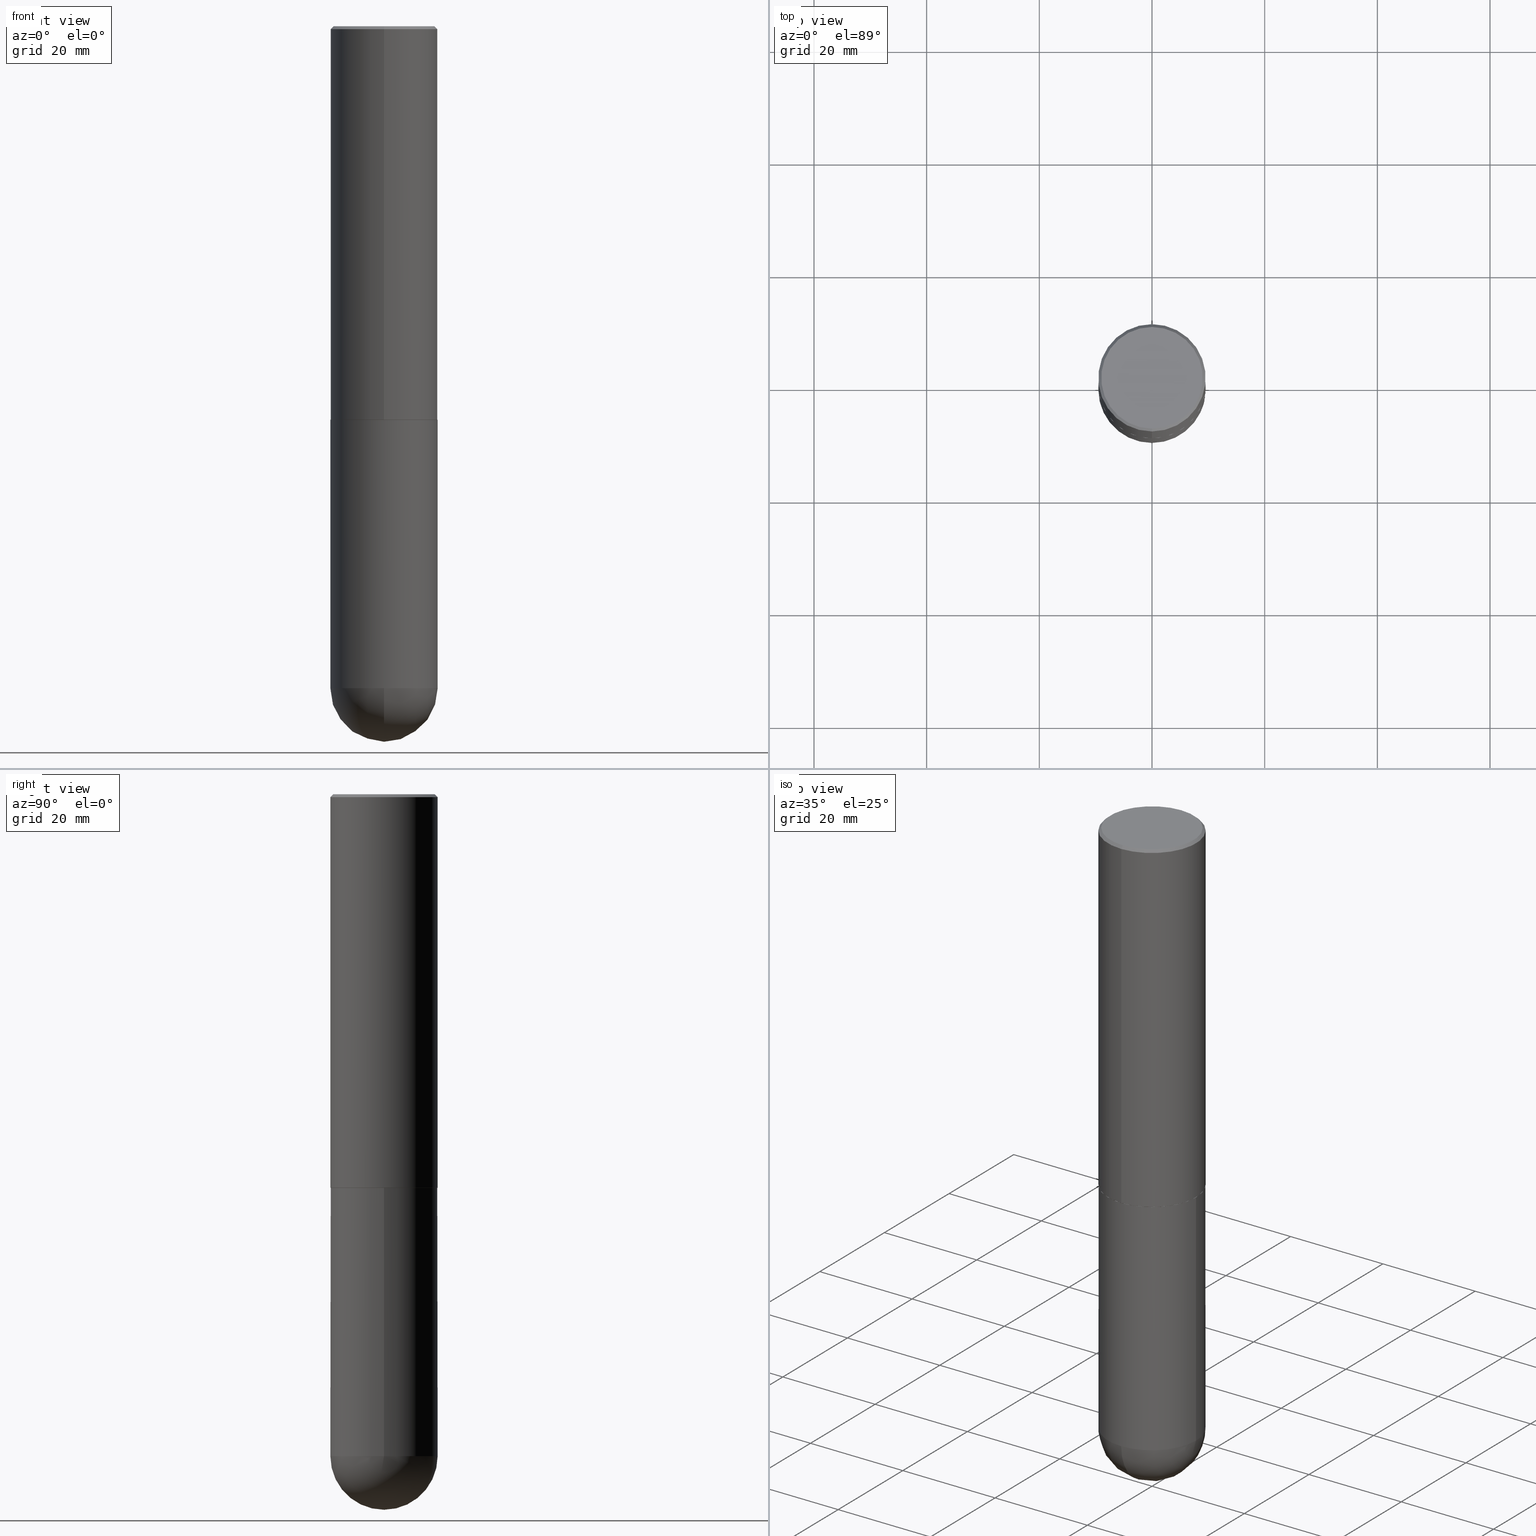
[diagram: canonical four-view strip — front | top / right | iso, engineering-drawing reading convention]
A machine part, canonical four-view strip (front | top / right | iso — engineering-drawing reading convention). The complete STEP part file that produces these views, byte-faithful:
ISO-10303-21;
HEADER;
FILE_DESCRIPTION (( 'STEP AP203' ),
    '1' );
FILE_NAME ('70465.STEP',
    '2024-04-10T12:33:47',
    ( '' ),
    ( '' ),
    'SwSTEP 2.0',
    'SolidWorks 2023',
    '' );
FILE_SCHEMA (( 'CONFIG_CONTROL_DESIGN' ));
ENDSEC;

DATA;
#1 = DIRECTION ( 'NONE',  ( -2.445545483075457236E-29, 3.491371533172028921E-15, 1.000000000000000000 ) ) ;
#2 = EDGE_CURVE ( 'NONE', #12, #28, #357, .T. ) ;
#3 = FACE_OUTER_BOUND ( 'NONE', #324, .T. ) ;
#4 = VECTOR ( 'NONE', #173, 39.37007874015748143 ) ;
#5 = APPLICATION_CONTEXT ( 'configuration controlled 3d designs of mechanical parts and assemblies' ) ;
#6 = CIRCLE ( 'NONE', #128, 0.3750000000000001110 ) ;
#7 = CARTESIAN_POINT ( 'NONE',  ( 3.132605730293573520E-45, -4.472249871077574679E-31, -1.280943557162587146E-16 ) ) ;
#8 = PERSON_AND_ORGANIZATION ( #91, #46 ) ;
#9 = DIRECTION ( 'NONE',  ( -2.445545483075457236E-29, 3.491371533172028921E-15, 1.000000000000000000 ) ) ;
#10 = SECURITY_CLASSIFICATION_LEVEL ( 'unclassified' ) ;
#11 = APPROVAL ( #327, 'UNSPECIFIED' ) ;
#12 = VERTEX_POINT ( 'NONE', #200 ) ;
#13 = PERSON_AND_ORGANIZATION_ROLE ( 'design_supplier' ) ;
#14 = CARTESIAN_POINT ( 'NONE',  ( 1.191225862093391378E-28, -1.790862693487176734E-14, -5.000000000000000000 ) ) ;
#15 = CIRCLE ( 'NONE', #21, 0.3550000000000001488 ) ;
#16 = LOCAL_TIME ( 8, 33, 47.00000000000000000, #391 ) ;
#17 = PERSON_AND_ORGANIZATION ( #91, #46 ) ;
#18 = LINE ( 'NONE', #393, #365 ) ;
#19 = EDGE_CURVE ( 'NONE', #96, #170, #15, .T. ) ;
#20 = COORDINATED_UNIVERSAL_TIME_OFFSET ( 5, 0, .BEHIND. ) ;
#21 = AXIS2_PLACEMENT_3D ( 'NONE', #7, #1, #165 ) ;
#22 = LOCAL_TIME ( 8, 33, 47.00000000000000000, #140 ) ;
#23 = CARTESIAN_POINT ( 'NONE',  ( 0.000000000000000000, 0.000000000000000000, 0.000000000000000000 ) ) ;
#24 = CARTESIAN_POINT ( 'NONE',  ( -0.3750000000000000555, -1.021030217788372352E-14, -2.750000000000000000 ) ) ;
#25 = ORIENTED_EDGE ( 'NONE', *, *, #179, .T. ) ;
#26 = CIRCLE ( 'NONE', #136, 0.3750000000000001110 ) ;
#27 = FACE_OUTER_BOUND ( 'NONE', #112, .T. ) ;
#28 = VERTEX_POINT ( 'NONE', #230 ) ;
#29 = EDGE_CURVE ( 'NONE', #247, #328, #289, .T. ) ;
#30 = DIRECTION ( 'NONE',  ( 1.000000000000000000, -6.982962677686265922E-15, 4.876176775795935793E-29 ) ) ;
#31 = ORIENTED_EDGE ( 'NONE', *, *, #341, .T. ) ;
#32 = AXIS2_PLACEMENT_3D ( 'NONE', #399, #86, #362 ) ;
#33 = DIRECTION ( 'NONE',  ( 6.982962677686266711E-15, 1.000000000000000000, -2.913971193241878005E-15 ) ) ;
#34 = EDGE_CURVE ( 'NONE', #388, #328, #226, .T. ) ;
#35 = LINE ( 'NONE', #68, #44 ) ;
#36 = DIRECTION ( 'NONE',  ( -2.445545483075457236E-29, 3.491371533172028921E-15, 1.000000000000000000 ) ) ;
#37 = ORIENTED_EDGE ( 'NONE', *, *, #243, .T. ) ;
#38 = CYLINDRICAL_SURFACE ( 'NONE', #176, 0.3750000000000002220 ) ;
#39 = ORIENTED_EDGE ( 'NONE', *, *, #219, .T. ) ;
#40 = EDGE_CURVE ( 'NONE', #191, #312, #349, .T. ) ;
#41 = EDGE_LOOP ( 'NONE', ( #277, #225, #193, #344 ) ) ;
#42 = COORDINATED_UNIVERSAL_TIME_OFFSET ( 5, 0, .BEHIND. ) ;
#43 = ORIENTED_EDGE ( 'NONE', *, *, #105, .T. ) ;
#44 = VECTOR ( 'NONE', #287, 39.37007874015748143 ) ;
#45 = CARTESIAN_POINT ( 'NONE',  ( 1.097917345069237163E-28, -1.662228356028959886E-14, -4.625000000000000000 ) ) ;
#46 = ORGANIZATION ( 'UNSPECIFIED', 'UNSPECIFIED', '' ) ;
#47 = APPLICATION_PROTOCOL_DEFINITION ( 'international standard', 'config_control_design', 1994, #115 ) ;
#48 = CC_DESIGN_DATE_AND_TIME_ASSIGNMENT ( #241, #210, ( #213 ) ) ;
#49 = AXIS2_PLACEMENT_3D ( 'NONE', #342, #403, #154 ) ;
#50 = VECTOR ( 'NONE', #278, 39.37007874015748143 ) ;
#51 = CARTESIAN_POINT ( 'NONE',  ( 1.131029322860625676E-28, -1.614810119214955014E-14, -4.625000000000000888 ) ) ;
#52 = CARTESIAN_POINT ( 'NONE',  ( 1.131029322860625676E-28, -1.614810119214955014E-14, -4.625000000000000888 ) ) ;
#53 = ORIENTED_EDGE ( 'NONE', *, *, #2, .T. ) ;
#54 = CARTESIAN_POINT ( 'NONE',  ( 2.478951750578625787E-15, 0.3550000000000001488, -1.303484072134200158E-15 ) ) ;
#55 = EDGE_CURVE ( 'NONE', #328, #191, #265, .T. ) ;
#56 = AXIS2_PLACEMENT_3D ( 'NONE', #258, #320, #377 ) ;
#57 = DIRECTION ( 'NONE',  ( 6.982962677686265922E-15, 1.000000000000000000, -3.494488891895535640E-15 ) ) ;
#58 = ORIENTED_EDGE ( 'NONE', *, *, #29, .T. ) ;
#59 = CARTESIAN_POINT ( 'NONE',  ( 2.657429831742841742E-15, 0.3739999999999903957, -2.750000000000000888 ) ) ;
#60 = VERTEX_POINT ( 'NONE', #14 ) ;
#61 = CARTESIAN_POINT ( 'NONE',  ( -2.664535259100265651E-15, -0.3750000000000165978, -4.624999999999999112 ) ) ;
#62 = ORIENTED_EDGE ( 'NONE', *, *, #243, .F. ) ;
#63 = EDGE_CURVE ( 'NONE', #328, #388, #175, .T. ) ;
#64 = DIRECTION ( 'NONE',  ( -6.982962677686266711E-15, -1.000000000000000000, 2.921762560068730595E-15 ) ) ;
#65 = AXIS2_PLACEMENT_3D ( 'NONE', #231, #196, #64 ) ;
#66 = ORIENTED_EDGE ( 'NONE', *, *, #172, .F. ) ;
#67 = CARTESIAN_POINT ( 'NONE',  ( 1.131029322860625676E-28, -1.614810119214955014E-14, -4.625000000000000888 ) ) ;
#68 = CARTESIAN_POINT ( 'NONE',  ( 2.618611004132351200E-15, 0.3750000000000000555, -0.02000000000000139513 ) ) ;
#69 = APPROVAL ( #206, 'UNSPECIFIED' ) ;
#70 = ORIENTED_EDGE ( 'NONE', *, *, #55, .T. ) ;
#71 = PERSON_AND_ORGANIZATION_ROLE ( 'creator' ) ;
#72 = AXIS2_PLACEMENT_3D ( 'NONE', #125, #122, #309 ) ;
#73 = CIRCLE ( 'NONE', #118, 0.3750000000000003886 ) ;
#74 = ORIENTED_EDGE ( 'NONE', *, *, #291, .F. ) ;
#75 = PERSON_AND_ORGANIZATION_ROLE ( 'design_owner' ) ;
#76 = CARTESIAN_POINT ( 'NONE',  ( 0.3750000000000001110, -2.618611004132350411E-15, 1.828566290923476483E-29 ) ) ;
#77 = PERSON_AND_ORGANIZATION ( #91, #46 ) ;
#78 = CARTESIAN_POINT ( 'NONE',  ( -0.3750000000000001110, -1.021030217788372667E-14, -4.625000000000000888 ) ) ;
#79 = CALENDAR_DATE ( 2024, 10, 4 ) ;
#80 = EDGE_CURVE ( 'NONE', #170, #312, #35, .T. ) ;
#81 = AXIS2_PLACEMENT_3D ( 'NONE', #23, #88, #244 ) ;
#82 = AXIS2_PLACEMENT_3D ( 'NONE', #51, #182, #183 ) ;
#83 = DIRECTION ( 'NONE',  ( 1.000000000000000000, 0.000000000000000000, 0.000000000000000000 ) ) ;
#84 = APPROVAL ( #114, 'UNSPECIFIED' ) ;
#85 = CARTESIAN_POINT ( 'NONE',  ( 4.891090966150935106E-31, -6.982743066344087079E-17, -0.02000000000000008715 ) ) ;
#86 = DIRECTION ( 'NONE',  ( -2.445545483075457236E-29, 3.491371533172028921E-15, 1.000000000000000000 ) ) ;
#87 = EDGE_CURVE ( 'NONE', #247, #322, #100, .T. ) ;
#88 = DIRECTION ( 'NONE',  ( -2.445468806185136597E-29, 3.491481338843145583E-15, 1.000000000000000000 ) ) ;
#89 = ORIENTED_EDGE ( 'NONE', *, *, #29, .F. ) ;
#90 = FACE_OUTER_BOUND ( 'NONE', #204, .T. ) ;
#91 = PERSON ( 'UNSPECIFIED', 'UNSPECIFIED', 'UNSPECIFIED', ('UNSPECIFIED'), ('UNSPECIFIED'), ('UNSPECIFIED') ) ;
#92 = ORIENTED_EDGE ( 'NONE', *, *, #262, .T. ) ;
#93 = AXIS2_PLACEMENT_3D ( 'NONE', #103, #257, #246 ) ;
#94 = APPROVAL_PERSON_ORGANIZATION ( #208, #69, #394 ) ;
#95 = CARTESIAN_POINT ( 'NONE',  ( 1.131029322860625676E-28, -1.614810119214955014E-14, -4.625000000000000888 ) ) ;
#96 = VERTEX_POINT ( 'NONE', #146 ) ;
#97 = DIRECTION ( 'NONE',  ( 1.000000000000000000, -6.982962677686265922E-15, 0.000000000000000000 ) ) ;
#98 = CARTESIAN_POINT ( 'NONE',  ( 1.097917345069237163E-28, -1.662228356028959886E-14, -4.625000000000000000 ) ) ;
#99 = VERTEX_POINT ( 'NONE', #24 ) ;
#100 = CIRCLE ( 'NONE', #93, 0.3739999999999999991 ) ;
#101 = DIRECTION ( 'NONE',  ( 1.000000000000000000, -6.982962677686265922E-15, 0.000000000000000000 ) ) ;
#102 = APPROVAL_PERSON_ORGANIZATION ( #8, #11, #303 ) ;
#103 = CARTESIAN_POINT ( 'NONE',  ( 6.725250078457506067E-29, -9.601271716223078743E-15, -2.750000000000000000 ) ) ;
#104 = DIRECTION ( 'NONE',  ( -2.445545483075457236E-29, 3.491371533172028921E-15, 1.000000000000000000 ) ) ;
#105 = EDGE_CURVE ( 'NONE', #312, #191, #381, .T. ) ;
#106 = EDGE_LOOP ( 'NONE', ( #197, #384 ) ) ;
#107 = PERSON_AND_ORGANIZATION_ROLE ( 'classification_officer' ) ;
#108 = ORIENTED_EDGE ( 'NONE', *, *, #255, .T. ) ;
#109 = AXIS2_PLACEMENT_3D ( 'NONE', #190, #216, #30 ) ;
#110 = AXIS2_PLACEMENT_3D ( 'NONE', #288, #348, #33 ) ;
#111 = ORIENTED_EDGE ( 'NONE', *, *, #219, .F. ) ;
#112 = EDGE_LOOP ( 'NONE', ( #308, #39, #314, #232 ) ) ;
#113 = ADVANCED_FACE ( 'NONE', ( #27 ), #250, .T. ) ;
#114 = APPROVAL_STATUS ( 'not_yet_approved' ) ;
#115 = APPLICATION_CONTEXT ( 'configuration controlled 3d designs of mechanical parts and assemblies' ) ;
#116 = DIRECTION ( 'NONE',  ( -2.445468806185136597E-29, 3.491481338843145583E-15, 1.000000000000000000 ) ) ;
#117 = PERSON_AND_ORGANIZATION ( #91, #46 ) ;
#118 = AXIS2_PLACEMENT_3D ( 'NONE', #45, #267, #177 ) ;
#119 = DESIGN_CONTEXT ( 'detailed design', #5, 'design' ) ;
#120 = DIRECTION ( 'NONE',  ( 2.445545483075457236E-29, -3.491371533172028526E-15, -1.000000000000000000 ) ) ;
#121 = VECTOR ( 'NONE', #201, 39.37007874015748143 ) ;
#122 = DIRECTION ( 'NONE',  ( 2.445545483075457236E-29, -3.491371533172028921E-15, -1.000000000000000000 ) ) ;
#123 = VERTEX_POINT ( 'NONE', #239 ) ;
#124 = CC_DESIGN_PERSON_AND_ORGANIZATION_ASSIGNMENT ( #363, #13, ( #181 ) ) ;
#125 = CARTESIAN_POINT ( 'NONE',  ( 4.891090966150935106E-31, -6.982743066344087079E-17, -0.02000000000000008715 ) ) ;
#126 = ORIENTED_EDGE ( 'NONE', *, *, #400, .F. ) ;
#127 = CARTESIAN_POINT ( 'NONE',  ( 0.000000000000000000, 0.000000000000000000, 0.000000000000000000 ) ) ;
#128 = AXIS2_PLACEMENT_3D ( 'NONE', #67, #323, #101 ) ;
#129 = DIRECTION ( 'NONE',  ( 2.438088387897960049E-29, -3.491481338843145188E-15, -1.000000000000000000 ) ) ;
#130 = ORIENTED_EDGE ( 'NONE', *, *, #304, .T. ) ;
#131 = SPHERICAL_SURFACE ( 'NONE', #56, 0.3750000000000003886 ) ;
#132 = DIRECTION ( 'NONE',  ( -6.982962677686265922E-15, -1.000000000000000000, 3.494488891895535640E-15 ) ) ;
#133 = ADVANCED_FACE ( 'NONE', ( #186 ), #306, .F. ) ;
#134 = AXIS2_PLACEMENT_3D ( 'NONE', #293, #234, #132 ) ;
#135 = FACE_OUTER_BOUND ( 'NONE', #188, .T. ) ;
#136 = AXIS2_PLACEMENT_3D ( 'NONE', #52, #116, #240 ) ;
#137 = CARTESIAN_POINT ( 'NONE',  ( 6.722804532974430980E-29, -9.597780344689909299E-15, -2.749000000000000110 ) ) ;
#138 =( NAMED_UNIT ( * ) SI_UNIT ( $, .STERADIAN. ) SOLID_ANGLE_UNIT ( ) );
#139 = ORIENTED_EDGE ( 'NONE', *, *, #87, .F. ) ;
#140 = COORDINATED_UNIVERSAL_TIME_OFFSET ( 5, 0, .BEHIND. ) ;
#141 = EDGE_LOOP ( 'NONE', ( #139, #221 ) ) ;
#142 = DATE_TIME_ROLE ( 'creation_date' ) ;
#143 = ADVANCED_FACE ( 'NONE', ( #364 ), #209, .T. ) ;
#144 = AXIS2_PLACEMENT_3D ( 'NONE', #387, #169, #83 ) ;
#145 = ORIENTED_EDGE ( 'NONE', *, *, #87, .T. ) ;
#146 = CARTESIAN_POINT ( 'NONE',  ( -2.504081769186609399E-15, -0.3550000000000001488, 1.111342538559812110E-15 ) ) ;
#147 = CALENDAR_DATE ( 2024, 10, 4 ) ;
#148 = ADVANCED_FACE ( 'NONE', ( #371 ), #248, .T. ) ;
#149 = DIMENSIONAL_EXPONENTS ( 1.000000000000000000, 0.000000000000000000, 0.000000000000000000, 0.000000000000000000, 0.000000000000000000, 0.000000000000000000, 0.000000000000000000 ) ;
#150 = CARTESIAN_POINT ( 'NONE',  ( -2.572686749164324336E-15, -0.3750000000000001665, -0.01999999999999877570 ) ) ;
#151 = DIRECTION ( 'NONE',  ( -6.982962677686266711E-15, -1.000000000000000000, 2.921762560068730595E-15 ) ) ;
#152 = ORIENTED_EDGE ( 'NONE', *, *, #255, .F. ) ;
#153 =( GEOMETRIC_REPRESENTATION_CONTEXT ( 3 ) GLOBAL_UNCERTAINTY_ASSIGNED_CONTEXT ( ( #339 ) ) GLOBAL_UNIT_ASSIGNED_CONTEXT ( ( #378, #203, #138 ) ) REPRESENTATION_CONTEXT ( 'NONE', 'WORKASPACE' ) );
#154 = DIRECTION ( 'NONE',  ( -6.982962677686265922E-15, -1.000000000000000000, 3.491371533172028526E-15 ) ) ;
#155 = LINE ( 'NONE', #302, #50 ) ;
#156 = EDGE_CURVE ( 'NONE', #99, #28, #281, .T. ) ;
#157 = FACE_OUTER_BOUND ( 'NONE', #353, .T. ) ;
#158 = EDGE_LOOP ( 'NONE', ( #111, #386, #279, #43 ) ) ;
#159 = LOCAL_TIME ( 8, 33, 47.00000000000000000, #42 ) ;
#160 = DIRECTION ( 'NONE',  ( -2.445545483075457236E-29, 3.491371533172028921E-15, 1.000000000000000000 ) ) ;
#161 = CARTESIAN_POINT ( 'NONE',  ( 2.660982545421643429E-15, 0.3739999999999903957, -2.750000000000000888 ) ) ;
#162 = PRODUCT_RELATED_PRODUCT_CATEGORY ( 'detail', '', ( #332 ) ) ;
#163 = ORIENTED_EDGE ( 'NONE', *, *, #291, .T. ) ;
#164 = DIRECTION ( 'NONE',  ( -6.982962677686266711E-15, -1.000000000000000000, 3.491371533172028526E-15 ) ) ;
#165 = DIRECTION ( 'NONE',  ( -6.982962677686266711E-15, -1.000000000000000000, 3.491371533172028526E-15 ) ) ;
#166 = DIRECTION ( 'NONE',  ( -6.982962677686266711E-15, -1.000000000000000000, 3.491371533172028921E-15 ) ) ;
#167 = CIRCLE ( 'NONE', #397, 0.3750000000000000555 ) ;
#168 = DIRECTION ( 'NONE',  ( -6.982962677686265922E-15, -1.000000000000000000, 2.913971193241877611E-15 ) ) ;
#169 = DIRECTION ( 'NONE',  ( 0.000000000000000000, 0.000000000000000000, 1.000000000000000000 ) ) ;
#170 = VERTEX_POINT ( 'NONE', #368 ) ;
#171 = CALENDAR_DATE ( 2024, 10, 4 ) ;
#172 = EDGE_CURVE ( 'NONE', #60, #406, #73, .T. ) ;
#173 = DIRECTION ( 'NONE',  ( -2.445545483075457236E-29, 3.491371533172028526E-15, 1.000000000000000000 ) ) ;
#174 = DATE_AND_TIME ( #356, #22 ) ;
#175 = CIRCLE ( 'NONE', #290, 0.3750000000000003886 ) ;
#176 = AXIS2_PLACEMENT_3D ( 'NONE', #352, #160, #166 ) ;
#177 = DIRECTION ( 'NONE',  ( -7.105427357600999492E-15, -1.000000000000000000, 0.000000000000000000 ) ) ;
#178 = DATE_AND_TIME ( #171, #369 ) ;
#179 = EDGE_CURVE ( 'NONE', #322, #247, #237, .T. ) ;
#180 = CALENDAR_DATE ( 2024, 10, 4 ) ;
#181 = PRODUCT_DEFINITION_FORMATION_WITH_SPECIFIED_SOURCE ( 'ANY', '', #332, .NOT_KNOWN. ) ;
#182 = DIRECTION ( 'NONE',  ( -2.445468806185136597E-29, 3.491481338843145583E-15, 1.000000000000000000 ) ) ;
#183 = DIRECTION ( 'NONE',  ( 1.000000000000000000, -6.982962677686265922E-15, 0.000000000000000000 ) ) ;
#184 = ADVANCED_FACE ( 'NONE', ( #90 ), #310, .T. ) ;
#185 = VERTEX_POINT ( 'NONE', #78 ) ;
#186 = FACE_OUTER_BOUND ( 'NONE', #141, .T. ) ;
#187 = CLOSED_SHELL ( 'NONE', ( #184, #360, #113, #199, #370, #321, #133, #214 ) ) ;
#188 = EDGE_LOOP ( 'NONE', ( #66, #92, #74, #152 ) ) ;
#189 = VECTOR ( 'NONE', #380, 39.37007874015748143 ) ;
#190 = CARTESIAN_POINT ( 'NONE',  ( 0.000000000000000000, 0.000000000000000000, 0.000000000000000000 ) ) ;
#191 = VERTEX_POINT ( 'NONE', #150 ) ;
#192 = FACE_OUTER_BOUND ( 'NONE', #106, .T. ) ;
#193 = ORIENTED_EDGE ( 'NONE', *, *, #40, .F. ) ;
#194 = CYLINDRICAL_SURFACE ( 'NONE', #270, 0.3750000000000002220 ) ;
#195 = EDGE_LOOP ( 'NONE', ( #297, #31, #223, #372, #163 ) ) ;
#196 = DIRECTION ( 'NONE',  ( -2.445545483075457236E-29, 3.491371533172028921E-15, 1.000000000000000000 ) ) ;
#197 = ORIENTED_EDGE ( 'NONE', *, *, #367, .T. ) ;
#198 = DIRECTION ( 'NONE',  ( 1.000000000000000000, -6.982962677686266711E-15, 0.000000000000000000 ) ) ;
#199 = ADVANCED_FACE ( 'NONE', ( #215 ), #410, .T. ) ;
#200 = CARTESIAN_POINT ( 'NONE',  ( 0.3750000000000001110, -1.549344844111645238E-14, -4.625000000000000888 ) ) ;
#201 = DIRECTION ( 'NONE',  ( -2.445468806185136877E-29, 3.491481338843145188E-15, 1.000000000000000000 ) ) ;
#202 = EDGE_LOOP ( 'NONE', ( #238, #295, #62, #126 ) ) ;
#203 =( NAMED_UNIT ( * ) PLANE_ANGLE_UNIT ( ) SI_UNIT ( $, .RADIAN. ) );
#204 = EDGE_LOOP ( 'NONE', ( #145, #408, #411, #89 ) ) ;
#205 = CC_DESIGN_PERSON_AND_ORGANIZATION_ASSIGNMENT ( #385, #296, ( #181 ) ) ;
#206 = APPROVAL_STATUS ( 'not_yet_approved' ) ;
#207 = DIRECTION ( 'NONE',  ( -2.445468806185136877E-29, 3.491481338843145188E-15, 1.000000000000000000 ) ) ;
#208 = PERSON_AND_ORGANIZATION ( #91, #46 ) ;
#209 = CYLINDRICAL_SURFACE ( 'NONE', #109, 0.3750000000000001110 ) ;
#210 = DATE_TIME_ROLE ( 'classification_date' ) ;
#211 = EDGE_CURVE ( 'NONE', #388, #312, #155, .T. ) ;
#212 = CARTESIAN_POINT ( 'NONE',  ( -2.611628041454596160E-15, -0.3740000000000096581, -2.749999999999998668 ) ) ;
#213 = SECURITY_CLASSIFICATION ( '', '', #10 ) ;
#214 = ADVANCED_FACE ( 'NONE', ( #338 ), #407, .F. ) ;
#215 = FACE_OUTER_BOUND ( 'NONE', #158, .T. ) ;
#216 = DIRECTION ( 'NONE',  ( -2.445468806185136597E-29, 3.491481338843145583E-15, 1.000000000000000000 ) ) ;
#217 = ORIENTED_EDGE ( 'NONE', *, *, #19, .T. ) ;
#218 = DIRECTION ( 'NONE',  ( 2.445545483075457236E-29, -3.491371533172028921E-15, -1.000000000000000000 ) ) ;
#219 = EDGE_CURVE ( 'NONE', #96, #191, #18, .T. ) ;
#220 = DIRECTION ( 'NONE',  ( -2.445468806185136597E-29, 3.491481338843145583E-15, 1.000000000000000000 ) ) ;
#221 = ORIENTED_EDGE ( 'NONE', *, *, #179, .F. ) ;
#222 = CARTESIAN_POINT ( 'NONE',  ( 2.618611004132417464E-15, 0.3749999999999903966, -2.750000000000000888 ) ) ;
#223 = ORIENTED_EDGE ( 'NONE', *, *, #367, .F. ) ;
#224 = CARTESIAN_POINT ( 'NONE',  ( 2.618611004132351200E-15, 0.3750000000000000555, -0.02000000000000139513 ) ) ;
#225 = ORIENTED_EDGE ( 'NONE', *, *, #211, .T. ) ;
#226 = CIRCLE ( 'NONE', #396, 0.3750000000000003886 ) ;
#227 = CC_DESIGN_PERSON_AND_ORGANIZATION_ASSIGNMENT ( #236, #107, ( #213 ) ) ;
#228 = CIRCLE ( 'NONE', #402, 0.3750000000000001110 ) ;
#229 = FACE_OUTER_BOUND ( 'NONE', #202, .T. ) ;
#230 = CARTESIAN_POINT ( 'NONE',  ( 0.3750000000000000555, -1.222018468595100145E-14, -2.750000000000000000 ) ) ;
#231 = CARTESIAN_POINT ( 'NONE',  ( 6.725250078457506067E-29, -9.601271716223078743E-15, -2.750000000000000000 ) ) ;
#232 = ORIENTED_EDGE ( 'NONE', *, *, #80, .F. ) ;
#233 = APPROVAL_DATE_TIME ( #329, #84 ) ;
#234 = DIRECTION ( 'NONE',  ( -2.445545483075457236E-29, 3.491371533172028921E-15, 1.000000000000000000 ) ) ;
#235 = AXIS2_PLACEMENT_3D ( 'NONE', #272, #405, #276 ) ;
#236 = PERSON_AND_ORGANIZATION ( #91, #46 ) ;
#237 = CIRCLE ( 'NONE', #251, 0.3739999999999999991 ) ;
#238 = ORIENTED_EDGE ( 'NONE', *, *, #262, .F. ) ;
#239 = CARTESIAN_POINT ( 'NONE',  ( 2.618611004132463218E-15, 0.3749999999999838463, -4.625000000000001776 ) ) ;
#240 = DIRECTION ( 'NONE',  ( 1.000000000000000000, -6.982962677686265922E-15, 0.000000000000000000 ) ) ;
#241 = DATE_AND_TIME ( #79, #16 ) ;
#242 = CIRCLE ( 'NONE', #283, 0.3550000000000001488 ) ;
#243 = EDGE_CURVE ( 'NONE', #185, #406, #26, .T. ) ;
#244 = DIRECTION ( 'NONE',  ( 1.000000000000000000, -6.982962677686265922E-15, 4.876176775795935793E-29 ) ) ;
#245 = AXIS2_PLACEMENT_3D ( 'NONE', #54, #120, #333 ) ;
#246 = DIRECTION ( 'NONE',  ( -6.982962677686266711E-15, -1.000000000000000000, 2.921762560068730595E-15 ) ) ;
#247 = VERTEX_POINT ( 'NONE', #212 ) ;
#248 = CYLINDRICAL_SURFACE ( 'NONE', #81, 0.3750000000000001110 ) ;
#249 = DIRECTION ( 'NONE',  ( -6.982962677686266711E-15, -1.000000000000000000, 3.491371533172028921E-15 ) ) ;
#250 = CONICAL_SURFACE ( 'NONE', #72, 0.3750000000000001110, 0.7853981633974473908 ) ;
#251 = AXIS2_PLACEMENT_3D ( 'NONE', #271, #311, #151 ) ;
#252 = DIRECTION ( 'NONE',  ( -2.445468806185136597E-29, 3.491481338843145583E-15, 1.000000000000000000 ) ) ;
#253 = ORIENTED_EDGE ( 'NONE', *, *, #156, .F. ) ;
#254 = LENGTH_MEASURE_WITH_UNIT ( LENGTH_MEASURE( 0.02539999999999999897 ), #284 );
#255 = EDGE_CURVE ( 'NONE', #406, #12, #325, .T. ) ;
#256 = CARTESIAN_POINT ( 'NONE',  ( -0.3750000000000001110, 2.664535259100376486E-15, -1.844600658845590159E-29 ) ) ;
#257 = DIRECTION ( 'NONE',  ( -2.445545483075457236E-29, 3.491371533172028921E-15, 1.000000000000000000 ) ) ;
#258 = CARTESIAN_POINT ( 'NONE',  ( 1.097917345069237163E-28, -1.662228356028959886E-14, -4.625000000000000000 ) ) ;
#259 = ADVANCED_BREP_SHAPE_REPRESENTATION ( '70465', ( #395, #398, #144 ), #153 ) ;
#260 = DIRECTION ( 'NONE',  ( -2.445545483075457236E-29, 3.491371533172028921E-15, 1.000000000000000000 ) ) ;
#261 = APPROVAL_ROLE ( '' ) ;
#262 = EDGE_CURVE ( 'NONE', #60, #123, #305, .T. ) ;
#263 = CARTESIAN_POINT ( 'NONE',  ( -2.611628041454596160E-15, -0.3740000000000096581, -2.749999999999998668 ) ) ;
#264 = APPROVAL_DATE_TIME ( #174, #69 ) ;
#265 = LINE ( 'NONE', #382, #4 ) ;
#266 = CARTESIAN_POINT ( 'NONE',  ( 6.722804532974430980E-29, -9.597780344689909299E-15, -2.749000000000000110 ) ) ;
#267 = DIRECTION ( 'NONE',  ( -1.000000000000000000, 7.105427357601001070E-15, -4.926315508542082329E-29 ) ) ;
#268 = CC_DESIGN_PERSON_AND_ORGANIZATION_ASSIGNMENT ( #117, #75, ( #332 ) ) ;
#269 = DATE_AND_TIME ( #147, #404 ) ;
#270 = AXIS2_PLACEMENT_3D ( 'NONE', #127, #104, #249 ) ;
#271 = CARTESIAN_POINT ( 'NONE',  ( 6.725250078457506067E-29, -9.601271716223078743E-15, -2.750000000000000000 ) ) ;
#272 = CARTESIAN_POINT ( 'NONE',  ( 4.891090966150935106E-31, -6.982743066344087079E-17, -0.02000000000000008715 ) ) ;
#273 = VECTOR ( 'NONE', #330, 39.37007874015748143 ) ;
#274 = APPROVAL_PERSON_ORGANIZATION ( #77, #84, #261 ) ;
#275 = PRODUCT_DEFINITION ( 'UNKNOWN', '', #181, #119 ) ;
#276 = DIRECTION ( 'NONE',  ( -6.982962677686265922E-15, -1.000000000000000000, 3.494488891895535640E-15 ) ) ;
#277 = ORIENTED_EDGE ( 'NONE', *, *, #63, .T. ) ;
#278 = DIRECTION ( 'NONE',  ( -2.445545483075457236E-29, 3.491371533172028526E-15, 1.000000000000000000 ) ) ;
#279 = ORIENTED_EDGE ( 'NONE', *, *, #80, .T. ) ;
#280 = DIRECTION ( 'NONE',  ( -1.000000000000000000, 6.982962677686265922E-15, -4.876176775795935793E-29 ) ) ;
#281 = CIRCLE ( 'NONE', #389, 0.3750000000000000555 ) ;
#282 = ORIENTED_EDGE ( 'NONE', *, *, #34, .T. ) ;
#283 = AXIS2_PLACEMENT_3D ( 'NONE', #318, #36, #164 ) ;
#284 =( LENGTH_UNIT ( ) NAMED_UNIT ( * ) SI_UNIT ( $, .METRE. ) );
#285 = EDGE_CURVE ( 'NONE', #322, #388, #412, .T. ) ;
#286 = DIRECTION ( 'NONE',  ( 6.982962677686265922E-15, 1.000000000000000000, 0.000000000000000000 ) ) ;
#287 = DIRECTION ( 'NONE',  ( 4.937700262164543309E-15, 0.7071067811865444641, -0.7071067811865505703 ) ) ;
#288 = CARTESIAN_POINT ( 'NONE',  ( 1.097917345069237163E-28, -1.662228356028959886E-14, -4.625000000000000000 ) ) ;
#289 = LINE ( 'NONE', #263, #273 ) ;
#290 = AXIS2_PLACEMENT_3D ( 'NONE', #266, #9, #392 ) ;
#291 = EDGE_CURVE ( 'NONE', #12, #123, #6, .T. ) ;
#292 = CARTESIAN_POINT ( 'NONE',  ( -2.618611004132284935E-15, -0.3750000000000099920, -2.748999999999999222 ) ) ;
#293 = CARTESIAN_POINT ( 'NONE',  ( 4.891090966150935106E-31, -6.982743066344087079E-17, -0.02000000000000008715 ) ) ;
#294 = COORDINATED_UNIVERSAL_TIME_OFFSET ( 5, 0, .BEHIND. ) ;
#295 = ORIENTED_EDGE ( 'NONE', *, *, #172, .T. ) ;
#296 = PERSON_AND_ORGANIZATION_ROLE ( 'creator' ) ;
#297 = ORIENTED_EDGE ( 'NONE', *, *, #400, .T. ) ;
#298 = MECHANICAL_CONTEXT ( 'NONE', #115, 'mechanical' ) ;
#299 = AXIS2_PLACEMENT_3D ( 'NONE', #222, #129, #280 ) ;
#300 = CC_DESIGN_SECURITY_CLASSIFICATION ( #213, ( #181 ) ) ;
#301 = CC_DESIGN_PERSON_AND_ORGANIZATION_ASSIGNMENT ( #17, #71, ( #275 ) ) ;
#302 = CARTESIAN_POINT ( 'NONE',  ( 2.664535259100376880E-15, 0.3750000000000002220, -1.309264324939511634E-15 ) ) ;
#303 = APPROVAL_ROLE ( '' ) ;
#304 = EDGE_CURVE ( 'NONE', #170, #96, #242, .T. ) ;
#305 = CIRCLE ( 'NONE', #351, 0.3750000000000003886 ) ;
#306 = PLANE ( 'NONE',  #49 ) ;
#307 = CARTESIAN_POINT ( 'NONE',  ( 6.725039217009124520E-29, -9.601573681818649859E-15, -2.750000000000000000 ) ) ;
#308 = ORIENTED_EDGE ( 'NONE', *, *, #19, .F. ) ;
#309 = DIRECTION ( 'NONE',  ( 6.982962677686265922E-15, 1.000000000000000000, -3.494488891895535640E-15 ) ) ;
#310 = CONICAL_SURFACE ( 'NONE', #32, 0.3739999999999999991, 0.7853981633977213939 ) ;
#311 = DIRECTION ( 'NONE',  ( -2.445545483075457236E-29, 3.491371533172028921E-15, 1.000000000000000000 ) ) ;
#312 = VERTEX_POINT ( 'NONE', #224 ) ;
#313 = CARTESIAN_POINT ( 'NONE',  ( 6.725039217009124520E-29, -9.601573681818649859E-15, -2.750000000000000000 ) ) ;
#314 = ORIENTED_EDGE ( 'NONE', *, *, #40, .T. ) ;
#315 = ADVANCED_FACE ( 'NONE', ( #229 ), #345, .T. ) ;
#316 = EDGE_LOOP ( 'NONE', ( #379, #37, #108, #53, #253 ) ) ;
#317 = AXIS2_PLACEMENT_3D ( 'NONE', #85, #218, #57 ) ;
#318 = CARTESIAN_POINT ( 'NONE',  ( 3.132605730293573520E-45, -4.472249871077574679E-31, -1.280943557162587146E-16 ) ) ;
#319 = ORIENTED_EDGE ( 'NONE', *, *, #105, .F. ) ;
#320 = DIRECTION ( 'NONE',  ( -1.000000000000000000, 6.982962677686266711E-15, -4.883557194083113462E-29 ) ) ;
#321 = ADVANCED_FACE ( 'NONE', ( #3 ), #343, .T. ) ;
#322 = VERTEX_POINT ( 'NONE', #161 ) ;
#323 = DIRECTION ( 'NONE',  ( -2.445468806185136597E-29, 3.491481338843145583E-15, 1.000000000000000000 ) ) ;
#324 = EDGE_LOOP ( 'NONE', ( #350, #25, #58, #355 ) ) ;
#325 = CIRCLE ( 'NONE', #82, 0.3750000000000001110 ) ;
#326 = CC_DESIGN_APPROVAL ( #11, ( #213 ) ) ;
#327 = APPROVAL_STATUS ( 'not_yet_approved' ) ;
#328 = VERTEX_POINT ( 'NONE', #292 ) ;
#329 = DATE_AND_TIME ( #180, #159 ) ;
#330 = DIRECTION ( 'NONE',  ( -4.937700262165896205E-15, -0.7071067811867381980, 0.7071067811863568364 ) ) ;
#331 = ADVANCED_FACE ( 'NONE', ( #192 ), #354, .F. ) ;
#332 = PRODUCT ( '70465', '70465', '', ( #298 ) ) ;
#333 = DIRECTION ( 'NONE',  ( 6.982962677686265922E-15, 1.000000000000000000, -3.491371533172028526E-15 ) ) ;
#334 = PRODUCT_DEFINITION_SHAPE ( 'NONE', 'NONE',  #275 ) ;
#335 = APPROVAL_DATE_TIME ( #269, #11 ) ;
#336 = ADVANCED_FACE ( 'NONE', ( #135 ), #131, .T. ) ;
#337 = DIRECTION ( 'NONE',  ( -4.851104656540959542E-15, -0.7071067811865493491, -0.7071067811865456854 ) ) ;
#338 = FACE_OUTER_BOUND ( 'NONE', #346, .T. ) ;
#339 = UNCERTAINTY_MEASURE_WITH_UNIT (LENGTH_MEASURE( 1.000000000000000082E-05 ), #378, 'distance_accuracy_value', 'NONE');
#340 = DIRECTION ( 'NONE',  ( 1.000000000000000000, -6.982962677686266711E-15, 0.000000000000000000 ) ) ;
#341 = EDGE_CURVE ( 'NONE', #185, #99, #383, .T. ) ;
#342 = CARTESIAN_POINT ( 'NONE',  ( 6.725250078457506067E-29, -9.601271716223078743E-15, -2.750000000000000000 ) ) ;
#343 = CONICAL_SURFACE ( 'NONE', #65, 0.3739999999999999991, 0.7853981633977213939 ) ;
#344 = ORIENTED_EDGE ( 'NONE', *, *, #55, .F. ) ;
#345 = SPHERICAL_SURFACE ( 'NONE', #110, 0.3750000000000003886 ) ;
#346 = EDGE_LOOP ( 'NONE', ( #130, #217 ) ) ;
#347 = FACE_OUTER_BOUND ( 'NONE', #41, .T. ) ;
#348 = DIRECTION ( 'NONE',  ( -1.000000000000000000, 6.982962677686266711E-15, -4.883557194083113462E-29 ) ) ;
#349 = CIRCLE ( 'NONE', #134, 0.3750000000000001110 ) ;
#350 = ORIENTED_EDGE ( 'NONE', *, *, #285, .F. ) ;
#351 = AXIS2_PLACEMENT_3D ( 'NONE', #98, #409, #286 ) ;
#352 = CARTESIAN_POINT ( 'NONE',  ( 0.000000000000000000, 0.000000000000000000, 0.000000000000000000 ) ) ;
#353 = EDGE_LOOP ( 'NONE', ( #359, #282, #70, #319 ) ) ;
#354 = PLANE ( 'NONE',  #299 ) ;
#355 = ORIENTED_EDGE ( 'NONE', *, *, #34, .F. ) ;
#356 = CALENDAR_DATE ( 2024, 10, 4 ) ;
#357 = LINE ( 'NONE', #76, #375 ) ;
#358 = CC_DESIGN_APPROVAL ( #69, ( #275 ) ) ;
#359 = ORIENTED_EDGE ( 'NONE', *, *, #211, .F. ) ;
#360 = ADVANCED_FACE ( 'NONE', ( #347 ), #38, .T. ) ;
#361 = APPLICATION_PROTOCOL_DEFINITION ( 'international standard', 'config_control_design', 1994, #5 ) ;
#362 = DIRECTION ( 'NONE',  ( -6.982962677686266711E-15, -1.000000000000000000, 2.921762560068730595E-15 ) ) ;
#363 = PERSON_AND_ORGANIZATION ( #91, #46 ) ;
#364 = FACE_OUTER_BOUND ( 'NONE', #195, .T. ) ;
#365 = VECTOR ( 'NONE', #337, 39.37007874015748143 ) ;
#366 = SHAPE_DEFINITION_REPRESENTATION ( #334, #259 ) ;
#367 = EDGE_CURVE ( 'NONE', #28, #99, #167, .T. ) ;
#368 = CARTESIAN_POINT ( 'NONE',  ( 2.548781377355488296E-15, 0.3550000000000001488, -1.367531249992329638E-15 ) ) ;
#369 = LOCAL_TIME ( 8, 33, 47.00000000000000000, #294 ) ;
#370 = ADVANCED_FACE ( 'NONE', ( #157 ), #194, .T. ) ;
#371 = FACE_OUTER_BOUND ( 'NONE', #316, .T. ) ;
#372 = ORIENTED_EDGE ( 'NONE', *, *, #2, .F. ) ;
#373 = DIRECTION ( 'NONE',  ( -2.445468806185136597E-29, 3.491481338843145583E-15, 1.000000000000000000 ) ) ;
#374 = CARTESIAN_POINT ( 'NONE',  ( 2.664535259100411196E-15, 0.3749999999999907296, -2.749000000000000998 ) ) ;
#375 = VECTOR ( 'NONE', #207, 39.37007874015748143 ) ;
#376 = CC_DESIGN_DATE_AND_TIME_ASSIGNMENT ( #178, #142, ( #275 ) ) ;
#377 = DIRECTION ( 'NONE',  ( 6.982962677686266711E-15, 1.000000000000000000, -2.913971193241878005E-15 ) ) ;
#378 =( CONVERSION_BASED_UNIT ( 'INCH', #254 ) LENGTH_UNIT ( ) NAMED_UNIT ( #149 ) );
#379 = ORIENTED_EDGE ( 'NONE', *, *, #341, .F. ) ;
#380 = DIRECTION ( 'NONE',  ( 5.024295867789434219E-15, 0.7071067811867430830, 0.7071067811863519514 ) ) ;
#381 = CIRCLE ( 'NONE', #235, 0.3750000000000001110 ) ;
#382 = CARTESIAN_POINT ( 'NONE',  ( -2.618611004132351594E-15, -0.3750000000000002220, 1.309264324939511634E-15 ) ) ;
#383 = LINE ( 'NONE', #256, #121 ) ;
#384 = ORIENTED_EDGE ( 'NONE', *, *, #156, .T. ) ;
#385 = PERSON_AND_ORGANIZATION ( #91, #46 ) ;
#386 = ORIENTED_EDGE ( 'NONE', *, *, #304, .F. ) ;
#387 = CARTESIAN_POINT ( 'NONE',  ( 0.000000000000000000, 0.000000000000000000, 0.000000000000000000 ) ) ;
#388 = VERTEX_POINT ( 'NONE', #374 ) ;
#389 = AXIS2_PLACEMENT_3D ( 'NONE', #307, #373, #340 ) ;
#390 = CC_DESIGN_APPROVAL ( #84, ( #181 ) ) ;
#391 = COORDINATED_UNIVERSAL_TIME_OFFSET ( 5, 0, .BEHIND. ) ;
#392 = DIRECTION ( 'NONE',  ( -6.982962677686265922E-15, -1.000000000000000000, 2.913971193241877611E-15 ) ) ;
#393 = CARTESIAN_POINT ( 'NONE',  ( -2.572686749164324336E-15, -0.3750000000000001665, -0.01999999999999877570 ) ) ;
#394 = APPROVAL_ROLE ( '' ) ;
#395 = MANIFOLD_SOLID_BREP ( 'Body-Move/Copy2[1]', #401 ) ;
#396 = AXIS2_PLACEMENT_3D ( 'NONE', #137, #260, #168 ) ;
#397 = AXIS2_PLACEMENT_3D ( 'NONE', #313, #252, #198 ) ;
#398 = MANIFOLD_SOLID_BREP ( 'Body-Move/Copy2[2]', #187 ) ;
#399 = CARTESIAN_POINT ( 'NONE',  ( 6.725250078457506067E-29, -9.601271716223078743E-15, -2.750000000000000000 ) ) ;
#400 = EDGE_CURVE ( 'NONE', #123, #185, #228, .T. ) ;
#401 = CLOSED_SHELL ( 'NONE', ( #143, #315, #336, #331, #148 ) ) ;
#402 = AXIS2_PLACEMENT_3D ( 'NONE', #95, #220, #97 ) ;
#403 = DIRECTION ( 'NONE',  ( -2.445545483075457236E-29, 3.491371533172028526E-15, 1.000000000000000000 ) ) ;
#404 = LOCAL_TIME ( 8, 33, 47.00000000000000000, #20 ) ;
#405 = DIRECTION ( 'NONE',  ( -2.445545483075457236E-29, 3.491371533172028921E-15, 1.000000000000000000 ) ) ;
#406 = VERTEX_POINT ( 'NONE', #61 ) ;
#407 = PLANE ( 'NONE',  #245 ) ;
#408 = ORIENTED_EDGE ( 'NONE', *, *, #285, .T. ) ;
#409 = DIRECTION ( 'NONE',  ( 1.000000000000000000, -6.982962677686265922E-15, 4.883557194083112340E-29 ) ) ;
#410 = CONICAL_SURFACE ( 'NONE', #317, 0.3750000000000001110, 0.7853981633974473908 ) ;
#411 = ORIENTED_EDGE ( 'NONE', *, *, #63, .F. ) ;
#412 = LINE ( 'NONE', #59, #189 ) ;
ENDSEC;
END-ISO-10303-21;
